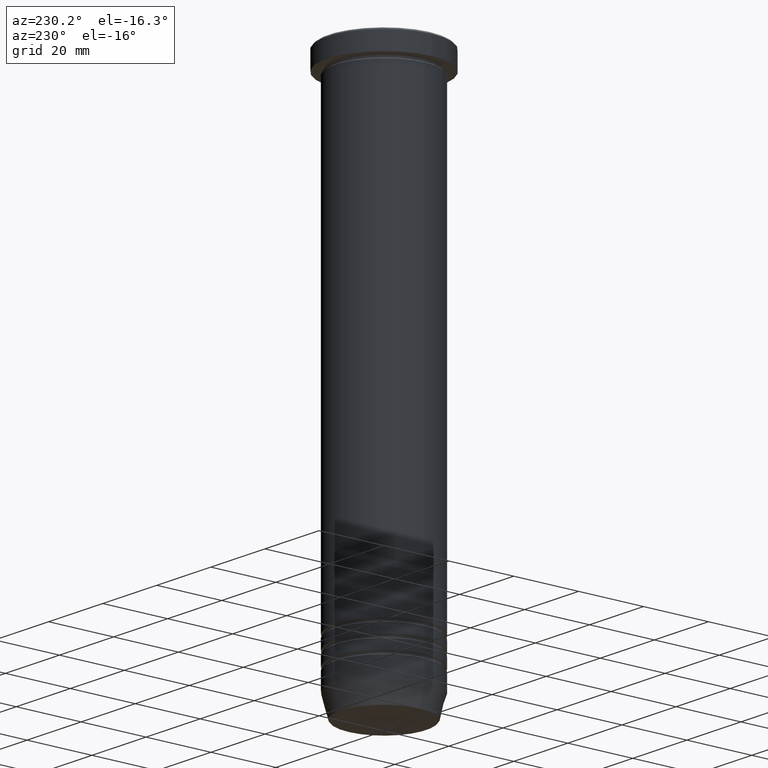
[diagram: clean part render]
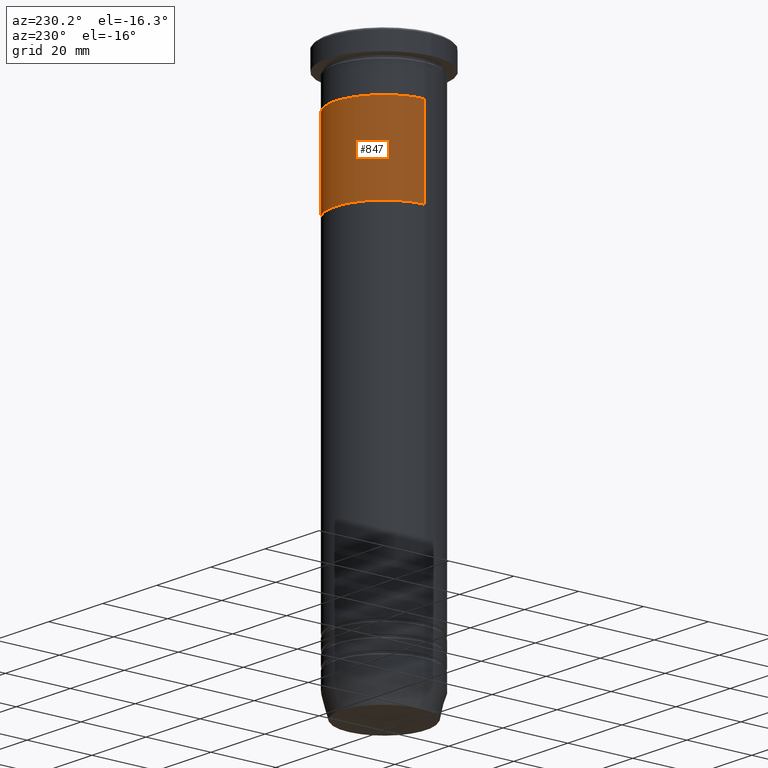
[diagram: same view with one face highlighted and labeled with its STEP entity id]
A machine part, auxiliary view. The second image highlights one B-rep face of the part: STEP entity #847.
In plain terms, the highlighted cylindrical surface (partial cylindrical patch) has radius 15 mm, axis along (-0, -0, 1).
Its self-contained STEP definition (entity closure, byte-faithful):
#9 = DIRECTION ( 'NONE',  ( 0.000000000000000000, 0.000000000000000000, -1.000000000000000000 ) ) ;
#10 = ORIENTED_EDGE ( 'NONE', *, *, #549, .T. ) ;
#26 = CARTESIAN_POINT ( 'NONE',  ( 0.000000000000000000, 0.000000000000000000, -16.00000000000000000 ) ) ;
#27 = AXIS2_PLACEMENT_3D ( 'NONE', #930, #1043, #1109 ) ;
#77 = DIRECTION ( 'NONE',  ( -1.000000000000000000, 0.000000000000000000, 0.000000000000000000 ) ) ;
#95 = CARTESIAN_POINT ( 'NONE',  ( -15.00000000000000000, 1.836970198721029194E-15, -41.99999999999999289 ) ) ;
#130 = CIRCLE ( 'NONE', #672, 15.00000000000000000 ) ;
#178 = CARTESIAN_POINT ( 'NONE',  ( 15.00000000000000000, 0.000000000000000000, -41.99999999999999289 ) ) ;
#280 = VERTEX_POINT ( 'NONE', #535 ) ;
#325 = EDGE_CURVE ( 'NONE', #827, #1099, #130, .T. ) ;
#382 = DIRECTION ( 'NONE',  ( -1.000000000000000000, 0.000000000000000000, 0.000000000000000000 ) ) ;
#421 = AXIS2_PLACEMENT_3D ( 'NONE', #26, #9, #382 ) ;
#463 = ORIENTED_EDGE ( 'NONE', *, *, #1019, .T. ) ;
#505 = CARTESIAN_POINT ( 'NONE',  ( -15.00000000000000000, 1.836970198721029194E-15, -41.99999999999999289 ) ) ;
#535 = CARTESIAN_POINT ( 'NONE',  ( -15.00000000000000000, 1.836970198721029194E-15, -16.00000000000000000 ) ) ;
#542 = VECTOR ( 'NONE', #821, 1000.000000000000000 ) ;
#549 = EDGE_CURVE ( 'NONE', #827, #280, #814, .T. ) ;
#550 = EDGE_CURVE ( 'NONE', #1099, #995, #621, .T. ) ;
#562 = CIRCLE ( 'NONE', #421, 15.00000000000000000 ) ;
#576 = FACE_OUTER_BOUND ( 'NONE', #1059, .T. ) ;
#621 = LINE ( 'NONE', #178, #829 ) ;
#632 = ORIENTED_EDGE ( 'NONE', *, *, #325, .F. ) ;
#642 = CARTESIAN_POINT ( 'NONE',  ( 15.00000000000000000, 0.000000000000000000, -16.00000000000000000 ) ) ;
#672 = AXIS2_PLACEMENT_3D ( 'NONE', #1148, #871, #77 ) ;
#814 = LINE ( 'NONE', #95, #542 ) ;
#821 = DIRECTION ( 'NONE',  ( -0.000000000000000000, -0.000000000000000000, 1.000000000000000000 ) ) ;
#827 = VERTEX_POINT ( 'NONE', #505 ) ;
#829 = VECTOR ( 'NONE', #1081, 1000.000000000000000 ) ;
#847 = ADVANCED_FACE ( 'NONE', ( #576 ), #1049, .T. ) ;
#871 = DIRECTION ( 'NONE',  ( 0.000000000000000000, 0.000000000000000000, -1.000000000000000000 ) ) ;
#922 = ORIENTED_EDGE ( 'NONE', *, *, #550, .F. ) ;
#930 = CARTESIAN_POINT ( 'NONE',  ( 0.000000000000000000, 0.000000000000000000, -41.99999999999999289 ) ) ;
#995 = VERTEX_POINT ( 'NONE', #642 ) ;
#1019 = EDGE_CURVE ( 'NONE', #280, #995, #562, .T. ) ;
#1043 = DIRECTION ( 'NONE',  ( -0.000000000000000000, -0.000000000000000000, 1.000000000000000000 ) ) ;
#1049 = CYLINDRICAL_SURFACE ( 'NONE', #27, 15.00000000000000000 ) ;
#1059 = EDGE_LOOP ( 'NONE', ( #632, #10, #463, #922 ) ) ;
#1081 = DIRECTION ( 'NONE',  ( -0.000000000000000000, -0.000000000000000000, 1.000000000000000000 ) ) ;
#1099 = VERTEX_POINT ( 'NONE', #1101 ) ;
#1101 = CARTESIAN_POINT ( 'NONE',  ( 15.00000000000000000, 0.000000000000000000, -41.99999999999999289 ) ) ;
#1109 = DIRECTION ( 'NONE',  ( 1.000000000000000000, 0.000000000000000000, 0.000000000000000000 ) ) ;
#1148 = CARTESIAN_POINT ( 'NONE',  ( 0.000000000000000000, 0.000000000000000000, -41.99999999999999289 ) ) ;